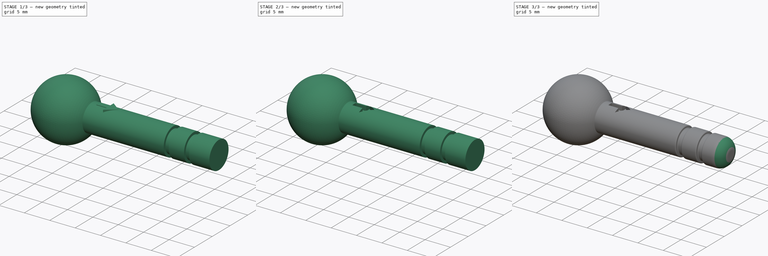
[diagram: build sequence overview — one tinted view per stage of 3, left to right]
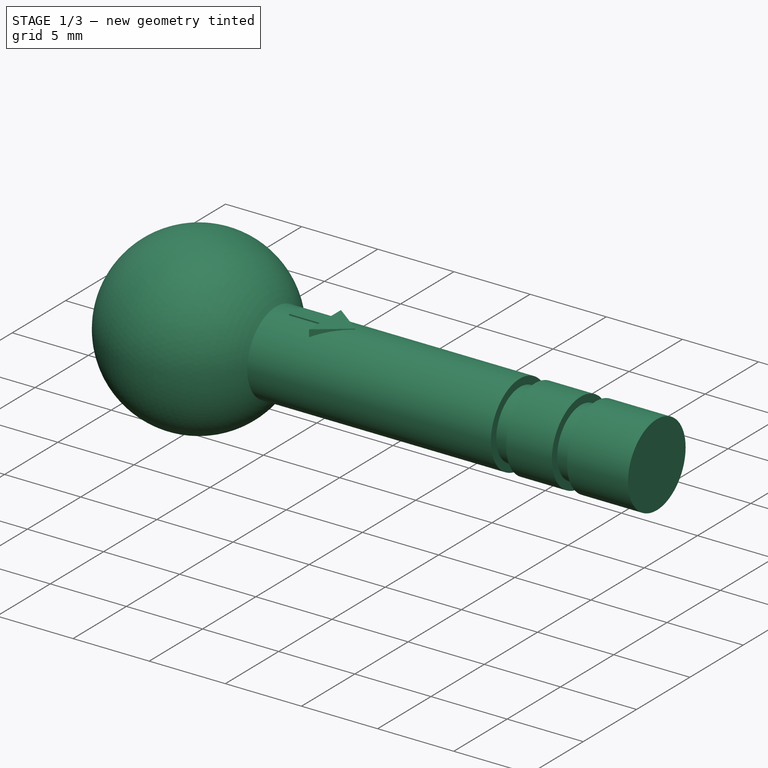
[diagram: stage 1 of 3 — iso view after this stage's code; geometry added in this stage tinted green]
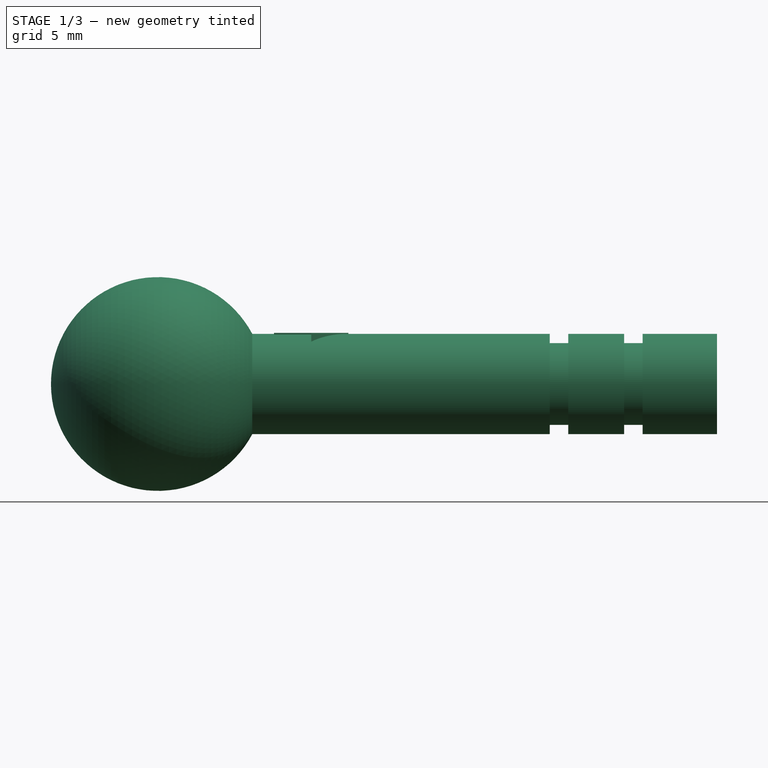
[diagram: stage 1 of 3 — front view after this stage's code; geometry added in this stage tinted green]
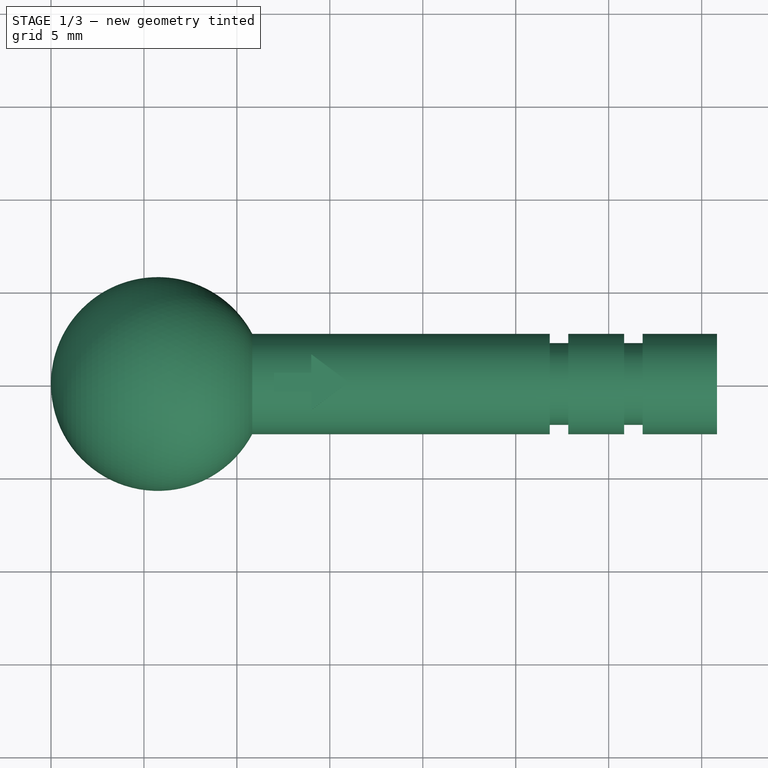
[diagram: stage 1 of 3 — top view after this stage's code; geometry added in this stage tinted green]
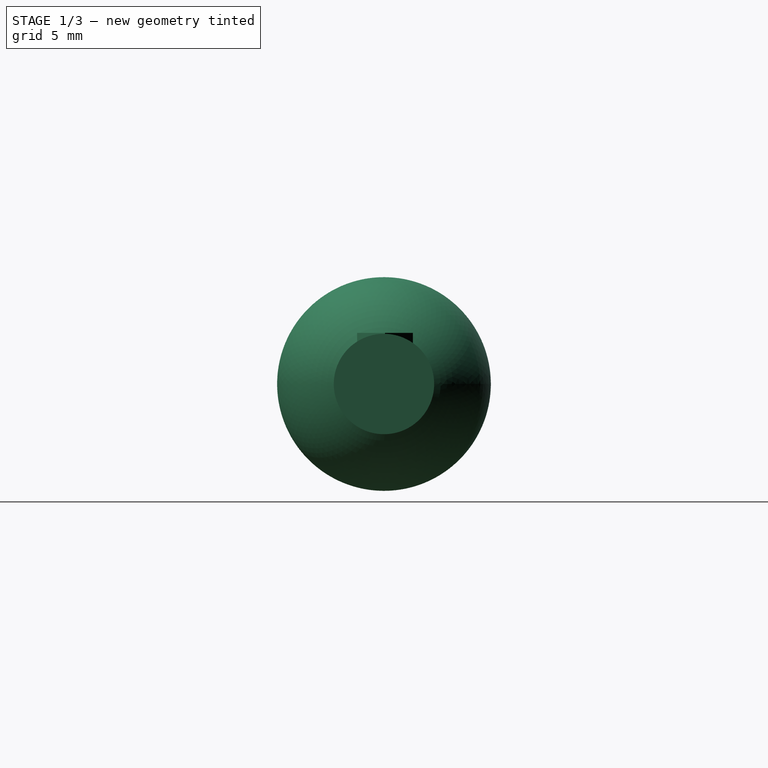
[diagram: stage 1 of 3 — right view after this stage's code; geometry added in this stage tinted green]
FCSTD DOCUMENT  (FreeCAD 0.14R3702 (Git))
Label: BRIO-train-track-peg-spare
License: CC-BY 3.0
LicenseURL: http://creativecommons.org/licenses/by/3.0/
objects: Sketcher::SketchObject×2, PartDesign::Fillet×2, PartDesign::Revolution×1, PartDesign::Pad×1, Part::Cut×1
note: 9 computed .brp shape members not serialized (recipe doc carries the construction recipe); baked Part::Feature solids carry a one-line shape summary decoded from their .brp

FEATURE [Sketcher::SketchObject] Sketch  label="Peg"
  sketch-geometry (12):
    g0: LineSegment StartX=0 StartY=0 StartZ=0 EndX=35.8267 EndY=0 EndZ=0
    g1: LineSegment StartX=35.8267 StartY=0 StartZ=0 EndX=35.8267 EndY=2.7 EndZ=0
    g2: ArcOfCircle CenterX=5.75 CenterY=0 CenterZ=0 NormalX=0 NormalY=0 NormalZ=1 Radius=5.75 StartAngle=0.488798 EndAngle=3.14159
    g3: LineSegment StartX=10.8267 StartY=2.7 StartZ=0 EndX=26.8267 EndY=2.7 EndZ=0
    g4: LineSegment StartX=26.8267 StartY=2.7 StartZ=0 EndX=26.8267 EndY=2.2 EndZ=0
    g5: LineSegment StartX=26.8267 StartY=2.2 StartZ=0 EndX=27.8267 EndY=2.2 EndZ=0
    g6: LineSegment StartX=27.8267 StartY=2.2 StartZ=0 EndX=27.8267 EndY=2.7 EndZ=0
    g7: LineSegment StartX=27.8267 StartY=2.7 StartZ=0 EndX=30.8267 EndY=2.7 EndZ=0
    g8: LineSegment StartX=30.8267 StartY=2.7 StartZ=0 EndX=30.8267 EndY=2.2 EndZ=0
    g9: LineSegment StartX=30.8267 StartY=2.2 StartZ=0 EndX=31.8267 EndY=2.2 EndZ=0
    g10: LineSegment StartX=31.8267 StartY=2.2 StartZ=0 EndX=31.8267 EndY=2.7 EndZ=0
    g11: LineSegment StartX=31.8267 StartY=2.7 StartZ=0 EndX=35.8267 EndY=2.7 EndZ=0
  constraints (37):
    c: Horizontal(g0)
    c: Radius(g2) = 5.75
    c: PointOnObject(g2,g-1)
    c: PointOnObject(g2,g-1)
    c: Coincident(g0,g1)
    c: Coincident(g0,g2)
    c: Coincident(g4,g5)
    c: Coincident(g5,g6)
    c: Coincident(g6,g7)
    c: Coincident(g7,g8)
    c: Coincident(g8,g9)
    c: Coincident(g9,g10)
    c: DistanceX(g3,g3) = 16
    c: Coincident(g3,g4)
    c: Perpendicular(g1,g0)
    c: DistanceX(g3,g6) = 1
    c: DistanceX(g10,g7) = -1
    c: DistanceX(g6,g7) = 3
    c: Horizontal(g11)
    c: Coincident(g10,g11)
    c: DistanceX(g10,g11) = 4
    c: Horizontal(g3)
    c: Horizontal(g9)
    c: Vertical(g10)
    c: Coincident(g2,g3)
    c: Vertical(g4)
    c: Vertical(g6)
    c: Horizontal(g5)
    c: Horizontal(g7)
    c: Equal(g4,g6)
    c: Equal(g6,g8)
    c: Equal(g8,g10)
    c: DistanceY(g3,g4) = -0.5
    c: DistanceY(g1,g0) = -2.7
    c: Coincident(g11,g1)
    c: Vertical(g8)
    c: Coincident(g0,g-1)
FEATURE [PartDesign::Revolution] Revolution
  Angle = 360
  Axis = (1,0,0)
  Base = (0,0,0)
  ReferenceAxis = -> Sketch [H_Axis]
  Sketch = -> Sketch
FEATURE [Sketcher::SketchObject] Sketch001  label="Arrow"
  Placement = pos=(0,0,2.75) rot=(0,0,1;0rad)
  sketch-geometry (7):
    g0: LineSegment StartX=12 StartY=0.555232 StartZ=0 EndX=12 EndY=-0.444768 EndZ=0
    g1: LineSegment StartX=12 StartY=-0.444768 StartZ=0 EndX=14 EndY=-0.444768 EndZ=0
    g2: LineSegment StartX=14 StartY=-0.444768 StartZ=0 EndX=14 EndY=-1.44477 EndZ=0
    g3: LineSegment StartX=14 StartY=-1.44477 StartZ=0 EndX=16 EndY=0.0552324 EndZ=0
    g4: LineSegment StartX=16 StartY=0.0552324 StartZ=0 EndX=14 EndY=1.55523 EndZ=0
    g5: LineSegment StartX=14 StartY=1.55523 StartZ=0 EndX=14 EndY=0.555232 EndZ=0
    g6: LineSegment StartX=14 StartY=0.555232 StartZ=0 EndX=12 EndY=0.555232 EndZ=0
  constraints (20):
    c: Vertical(g0)
    c: Coincident(g0,g1)
    c: Horizontal(g1)
    c: Coincident(g1,g2)
    c: Coincident(g2,g3)
    c: Coincident(g3,g4)
    c: Coincident(g4,g5)
    c: Vertical(g5)
    c: Coincident(g5,g6)
    c: Coincident(g6,g0)
    c: Horizontal(g6)
    c: Equal(g5,g2)
    c: Vertical(g2)
    c: Equal(g3,g4)
    c: Equal(g1,g6)
    c: DistanceY(g4,g2) = -3
    c: DistanceY(g0,g0) = 1
    c: DistanceX(g0,g5) = 2
    c: DistanceX(g4,g3) = 2
    c: DistanceX(g-1,g3) = 16
FEATURE [PartDesign::Pad] Pad
  Length = 1
  Length2 = 100
  Placement = pos=(0,0,2.75) rot=(0,0,1;0rad)
  Reversed = true
  Sketch = -> Sketch001
  Type = 0
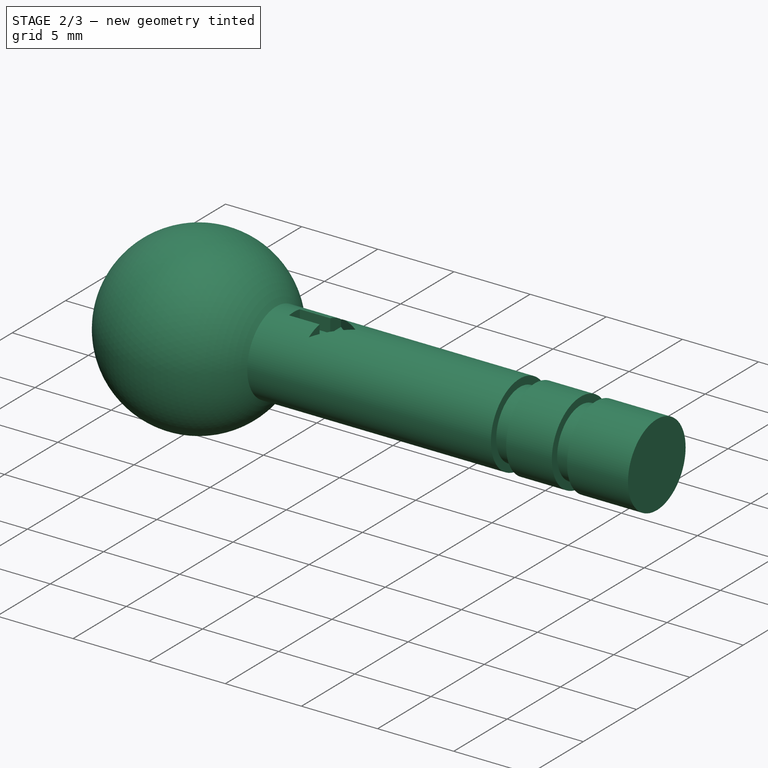
[diagram: stage 2 of 3 — iso view after this stage's code; geometry added in this stage tinted green]
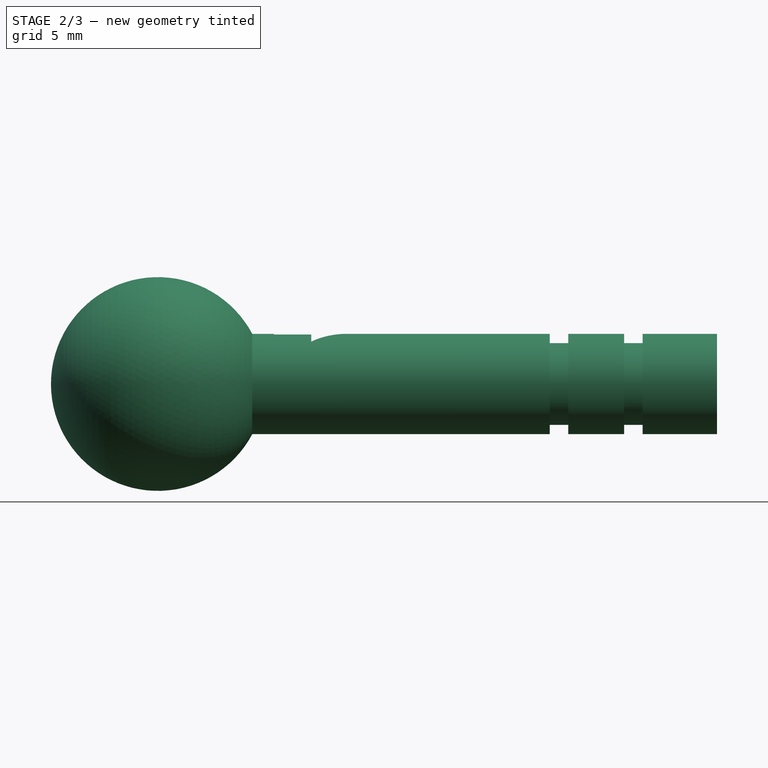
[diagram: stage 2 of 3 — front view after this stage's code; geometry added in this stage tinted green]
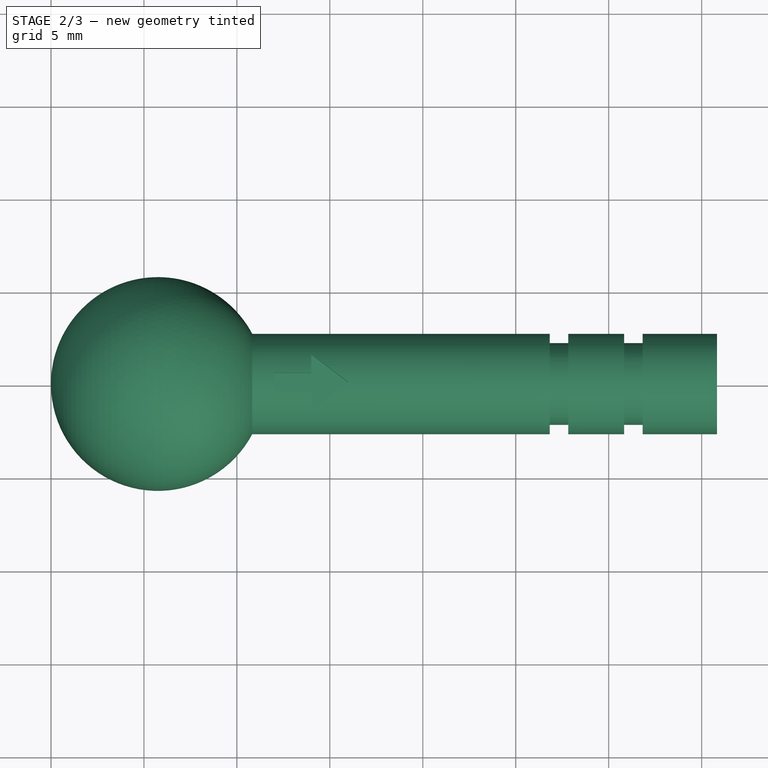
[diagram: stage 2 of 3 — top view after this stage's code; geometry added in this stage tinted green]
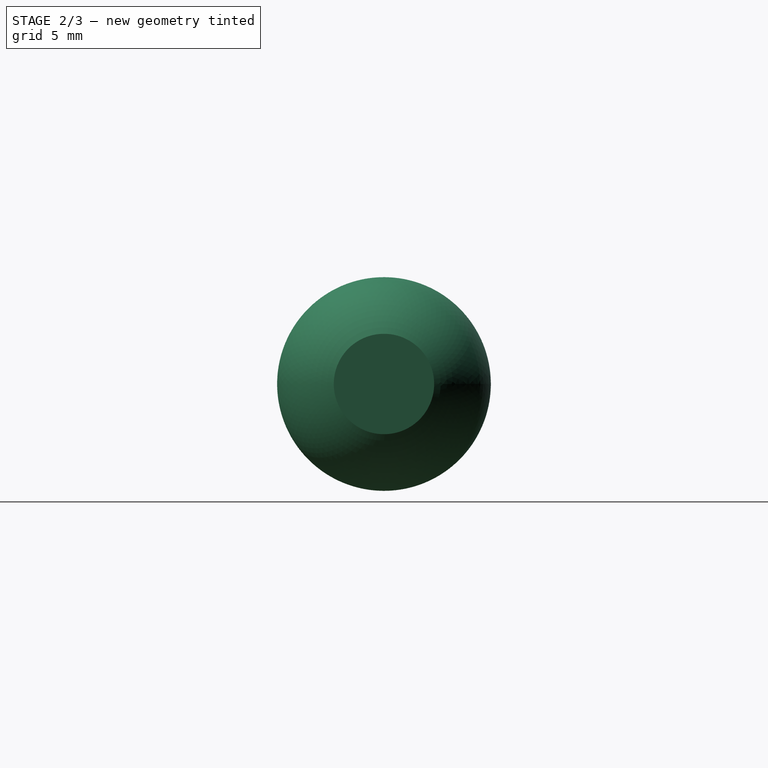
[diagram: stage 2 of 3 — right view after this stage's code; geometry added in this stage tinted green]
FEATURE [Part::Cut] Cut
  Base = -> Revolution
  Tool = -> Pad
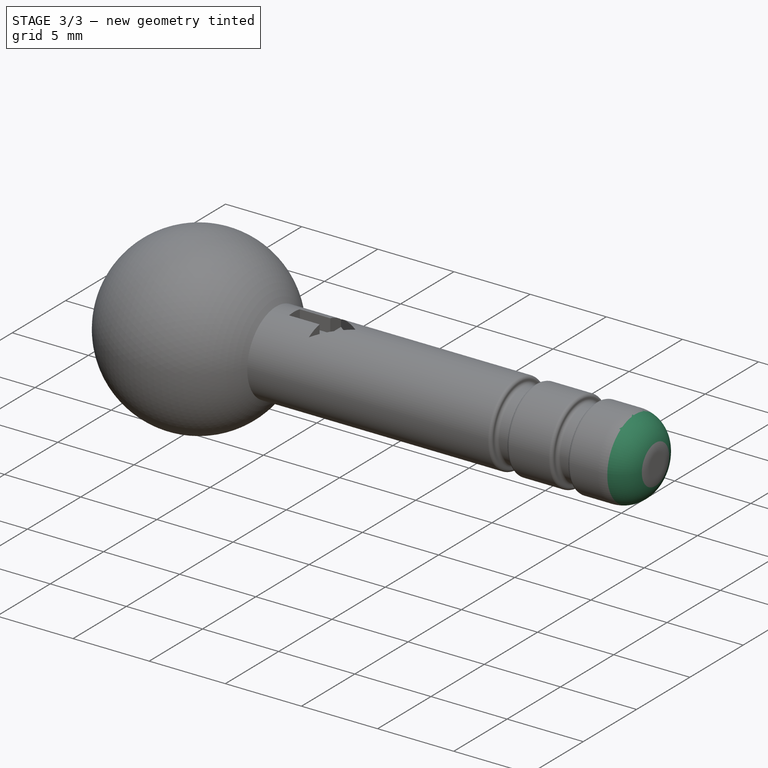
[diagram: stage 3 of 3 — iso view after this stage's code; geometry added in this stage tinted green]
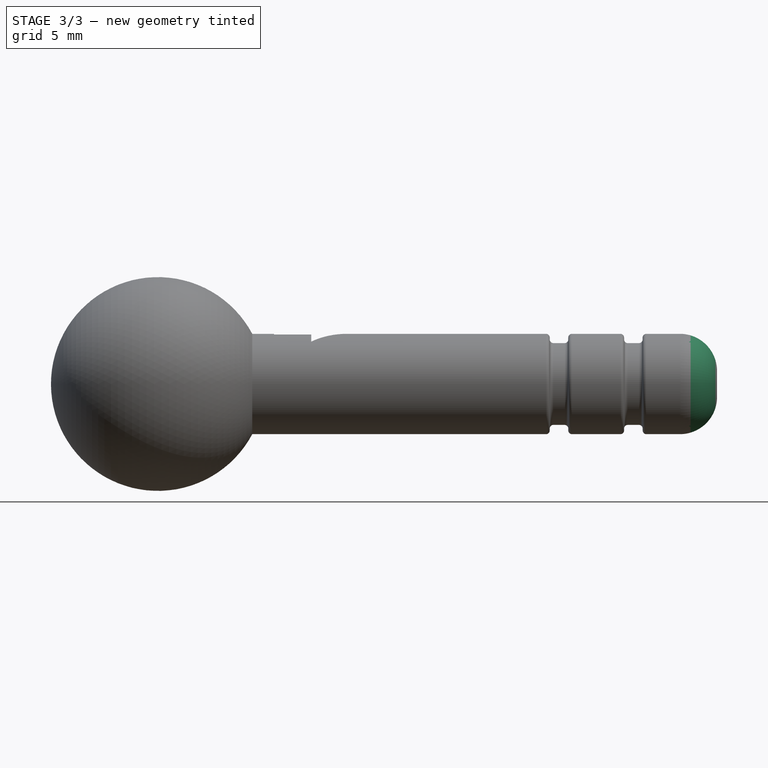
[diagram: stage 3 of 3 — front view after this stage's code; geometry added in this stage tinted green]
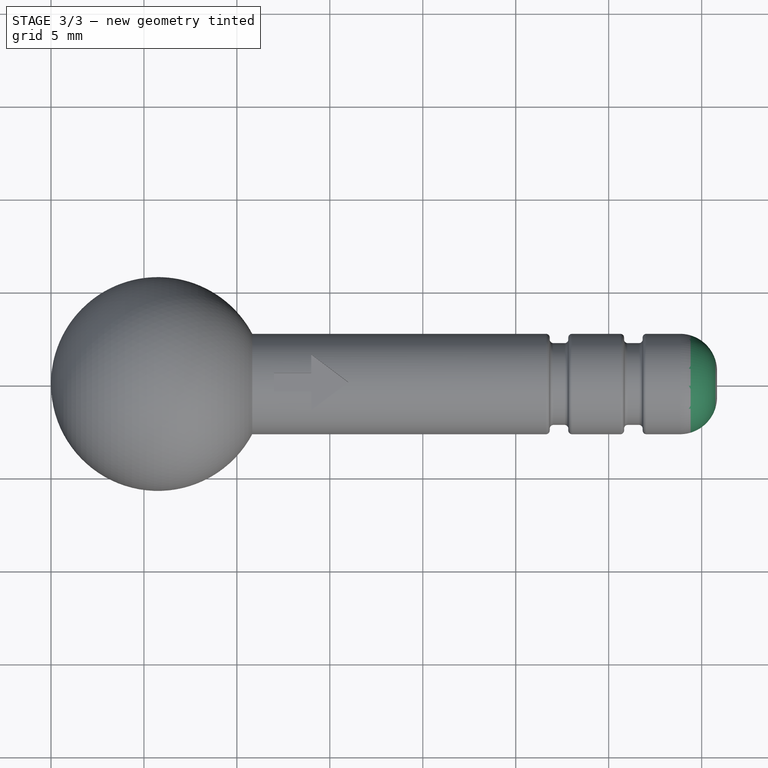
[diagram: stage 3 of 3 — top view after this stage's code; geometry added in this stage tinted green]
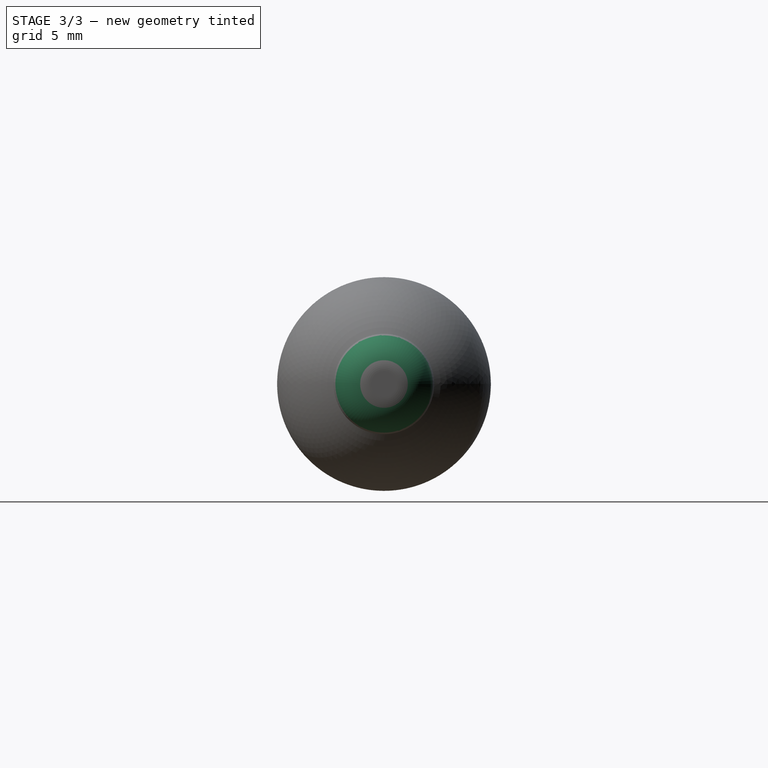
[diagram: stage 3 of 3 — right view after this stage's code; geometry added in this stage tinted green]
FEATURE [PartDesign::Fillet] Fillet
  Base = -> Cut [Edge5,Edge7,Edge2,Edge8,Edge11,Edge13,Edge4,Edge10]
  Radius = 0.2
FEATURE [PartDesign::Fillet] Fillet001
  Base = -> Fillet [Edge3]
  Radius = 2
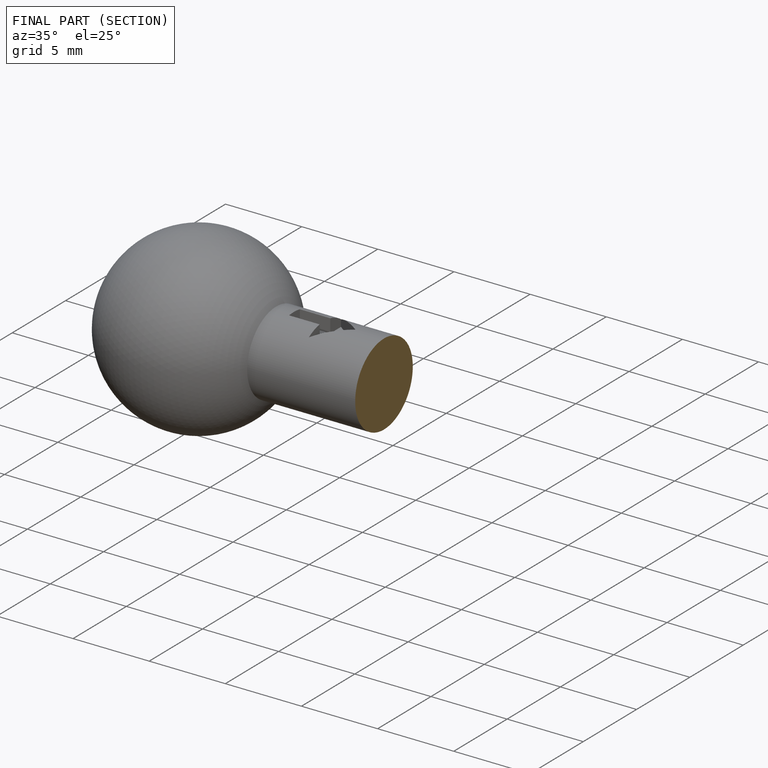
[diagram: finished part — half-section view (interior)]
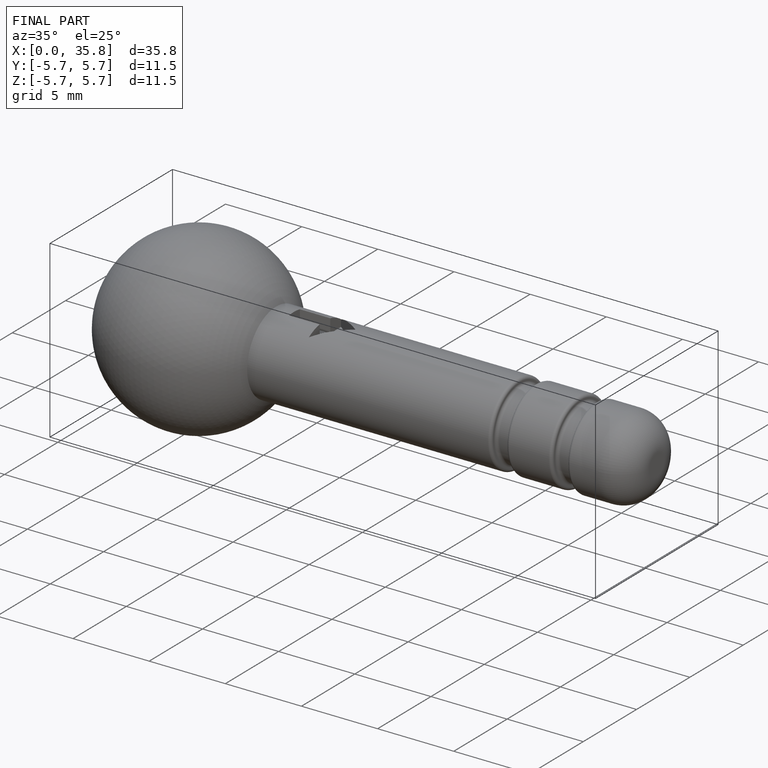
[diagram: finished part — iso view with bounding-box wireframe]
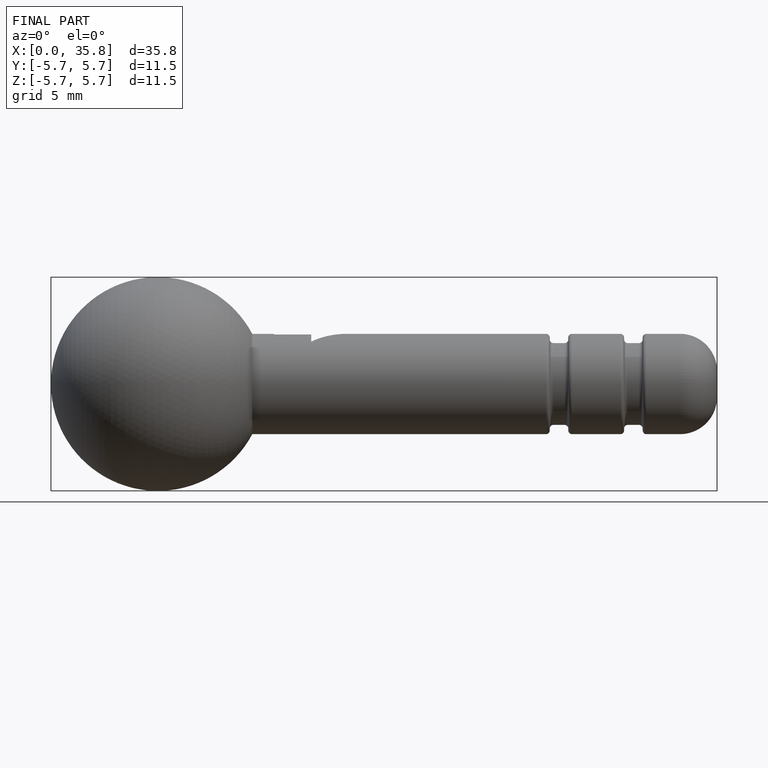
[diagram: finished part — front view with bounding-box wireframe]
